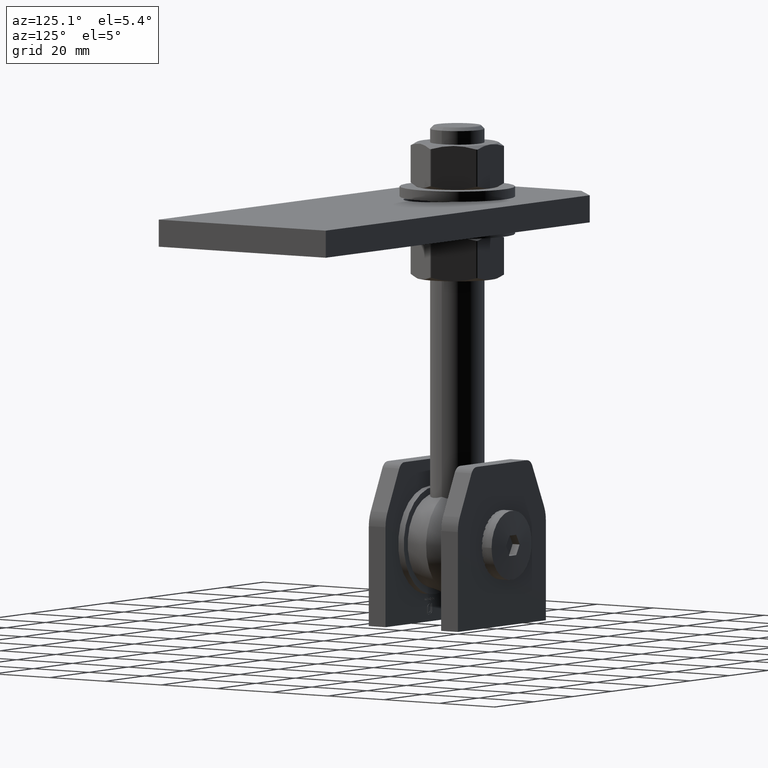
[diagram: clean part render]
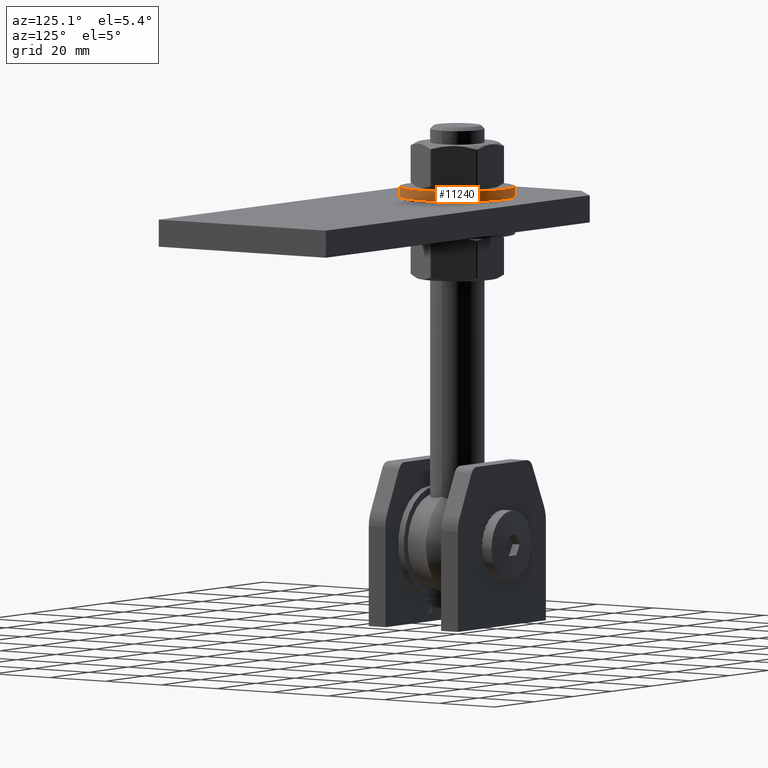
[diagram: same view with one face highlighted and labeled with its STEP entity id]
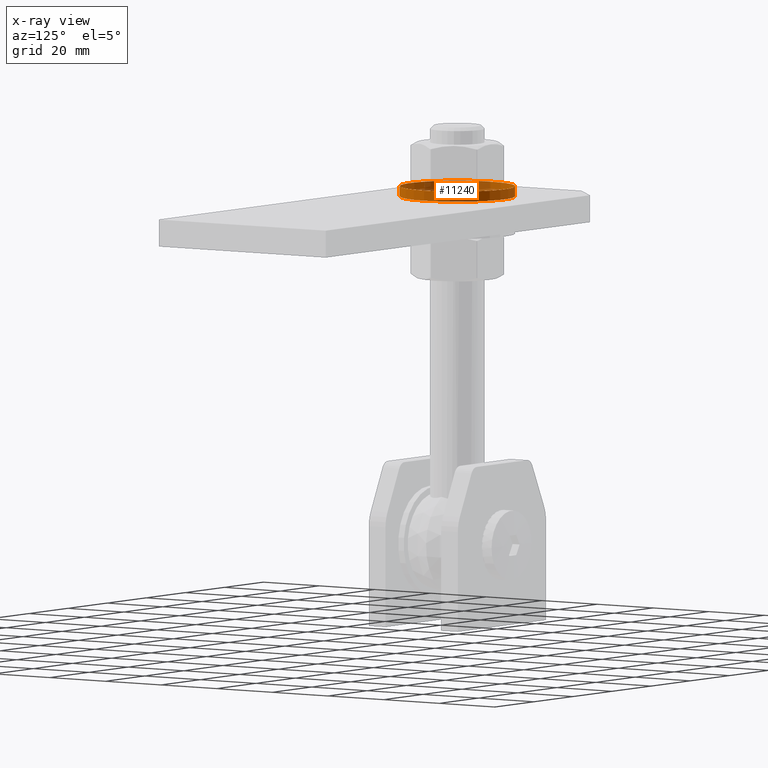
[diagram: x-ray of the same camera — body ghosted, the highlighted face saturated]
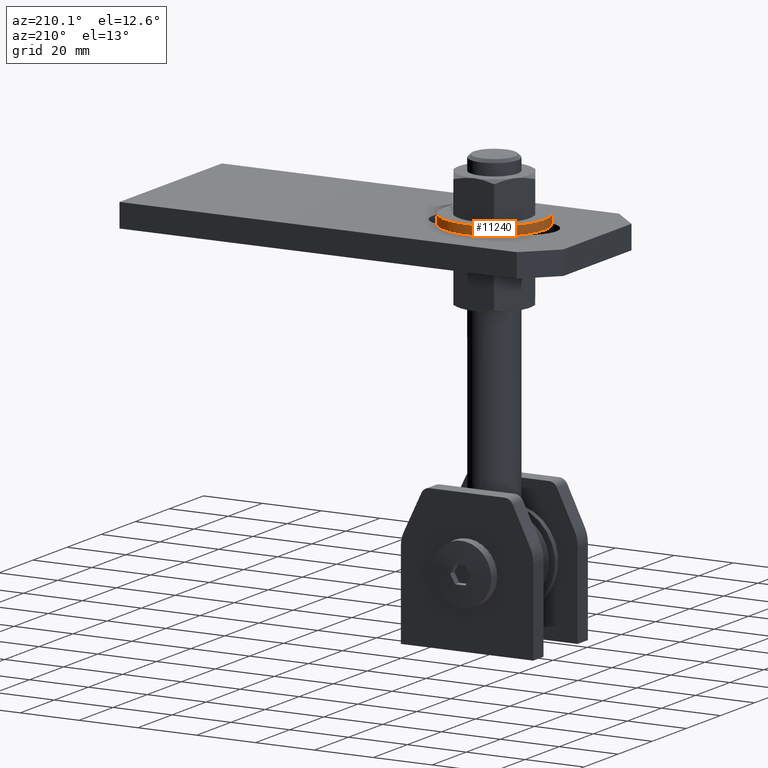
[diagram: same view with one face highlighted and labeled with its STEP entity id]
A machine part, auxiliary view. The second image highlights one B-rep face of the part: STEP entity #11240.
The next image is the same camera in x-ray: the body ghosted, the highlighted face saturated — about 32% of this face is hidden behind the body in this view.
A second angle (auxiliary view) of the same face is appended — the face is thin or edge-on in the first view.
In plain terms, the highlighted cylindrical surface (bore or boss wall) has radius 17 mm, axis along (0, -0, 1).
Its self-contained STEP definition (entity closure, byte-faithful):
#938 = VERTEX_POINT ( 'NONE', #6580 ) ;
#1541 = CARTESIAN_POINT ( 'NONE',  ( 0.000000000000000000, -3.330669073875475538E-15, -1.500000000000001332 ) ) ;
#2014 = EDGE_LOOP ( 'NONE', ( #20674 ) ) ;
#2836 = CIRCLE ( 'NONE', #8648, 17.00000000000000000 ) ;
#2981 = DIRECTION ( 'NONE',  ( 8.135128085091684243E-31, 2.220446049250313475E-15, 1.000000000000000000 ) ) ;
#4996 = VERTEX_POINT ( 'NONE', #20186 ) ;
#5489 = ORIENTED_EDGE ( 'NONE', *, *, #7668, .T. ) ;
#5519 = CARTESIAN_POINT ( 'NONE',  ( 0.000000000000000000, 3.330669073875472777E-15, 1.500000000000001332 ) ) ;
#5671 = DIRECTION ( 'NONE',  ( -8.135128085091684243E-31, -2.220446049250313475E-15, -1.000000000000000000 ) ) ;
#6580 = CARTESIAN_POINT ( 'NONE',  ( 17.00000000000000000, 1.842970220877759857E-14, 1.500000000000001332 ) ) ;
#7668 = EDGE_CURVE ( 'NONE', #4996, #4996, #2836, .T. ) ;
#8444 = DIRECTION ( 'NONE',  ( 8.135128085091684243E-31, 2.220446049250313475E-15, 1.000000000000000000 ) ) ;
#8648 = AXIS2_PLACEMENT_3D ( 'NONE', #1541, #8444, #13768 ) ;
#9811 = DIRECTION ( 'NONE',  ( 1.000000000000000000, 8.881784197001250351E-16, 0.000000000000000000 ) ) ;
#9996 = AXIS2_PLACEMENT_3D ( 'NONE', #5519, #5671, #12336 ) ;
#10099 = CYLINDRICAL_SURFACE ( 'NONE', #9996, 17.00000000000000000 ) ;
#10162 = CIRCLE ( 'NONE', #20686, 17.00000000000000000 ) ;
#11240 = ADVANCED_FACE ( 'NONE', ( #21892, #12517 ), #10099, .T. ) ;
#12336 = DIRECTION ( 'NONE',  ( -1.000000000000000000, -8.881784197001250351E-16, 0.000000000000000000 ) ) ;
#12517 = FACE_OUTER_BOUND ( 'NONE', #20474, .T. ) ;
#13768 = DIRECTION ( 'NONE',  ( 1.000000000000000000, 8.881784197001250351E-16, 0.000000000000000000 ) ) ;
#14955 = CARTESIAN_POINT ( 'NONE',  ( 0.000000000000000000, 3.330669073875472777E-15, 1.500000000000001332 ) ) ;
#18857 = EDGE_CURVE ( 'NONE', #938, #938, #10162, .T. ) ;
#20186 = CARTESIAN_POINT ( 'NONE',  ( 17.00000000000000000, 1.176836406102665144E-14, -1.500000000000001332 ) ) ;
#20474 = EDGE_LOOP ( 'NONE', ( #5489 ) ) ;
#20674 = ORIENTED_EDGE ( 'NONE', *, *, #18857, .F. ) ;
#20686 = AXIS2_PLACEMENT_3D ( 'NONE', #14955, #2981, #9811 ) ;
#21892 = FACE_OUTER_BOUND ( 'NONE', #2014, .T. ) ;